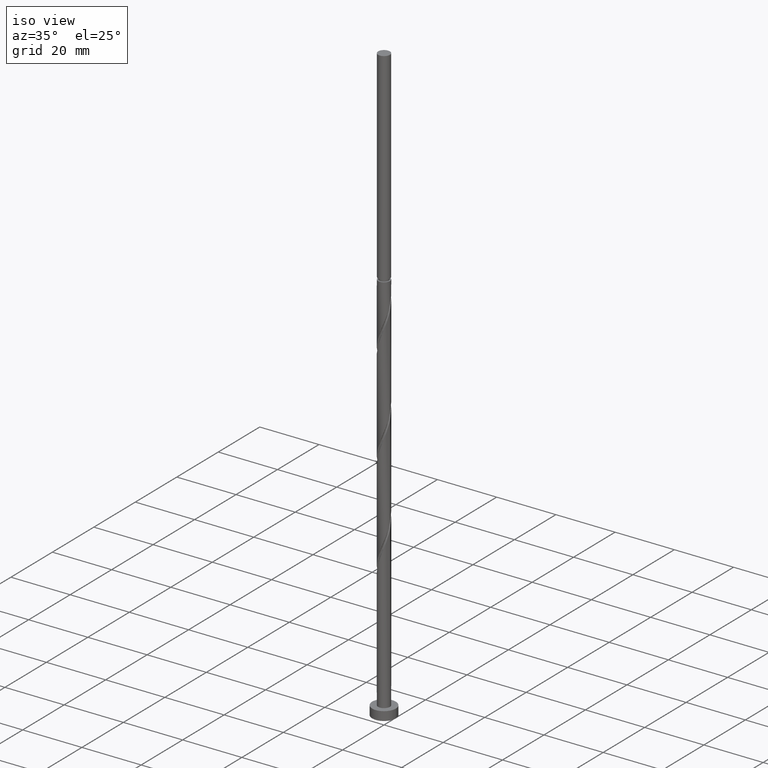
[diagram: clean part render]
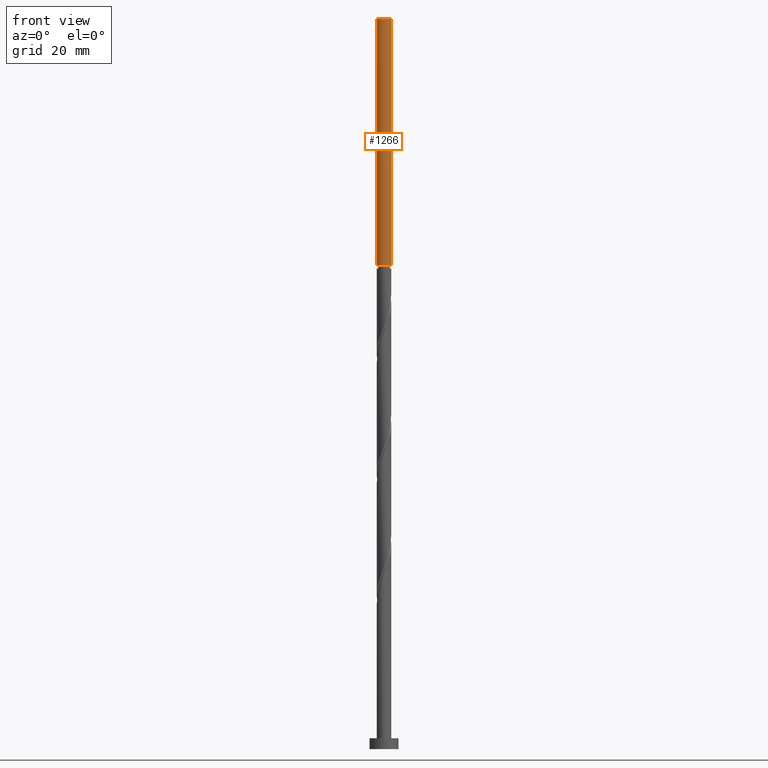
[diagram: tour spotlight — one face highlighted and labeled with its STEP entity id]
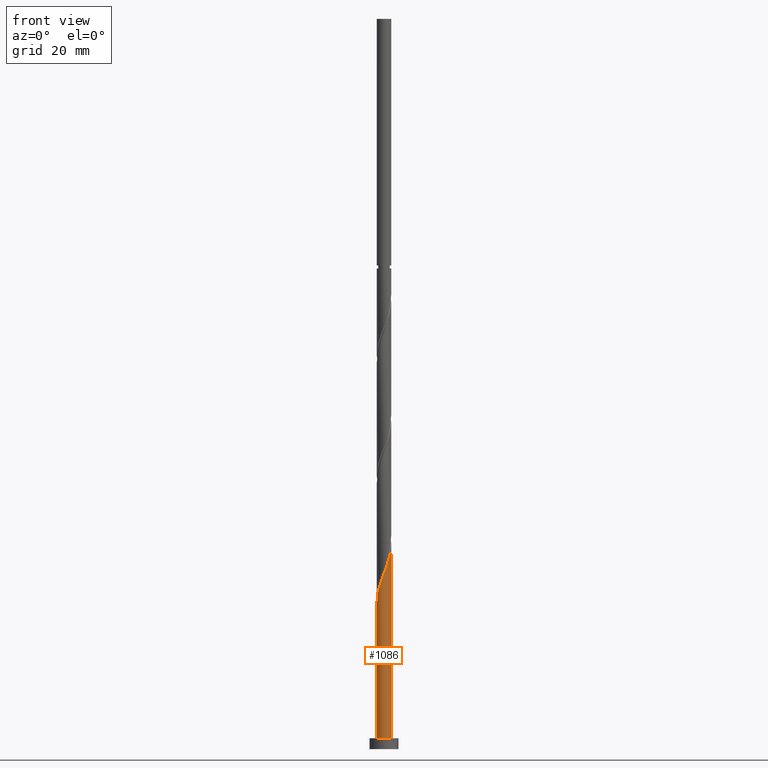
[diagram: tour spotlight — one face highlighted and labeled with its STEP entity id]
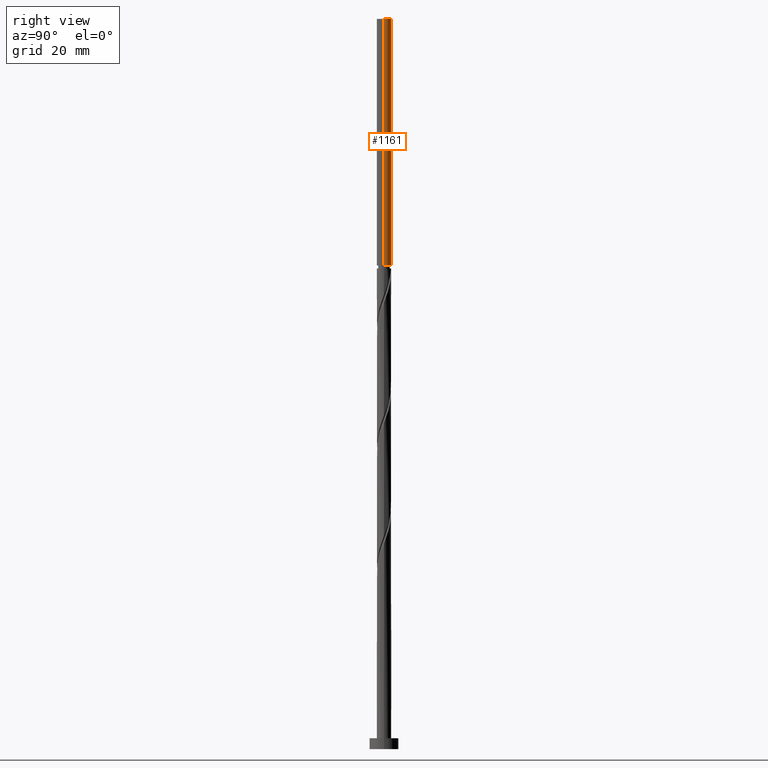
[diagram: tour spotlight — one face highlighted and labeled with its STEP entity id]
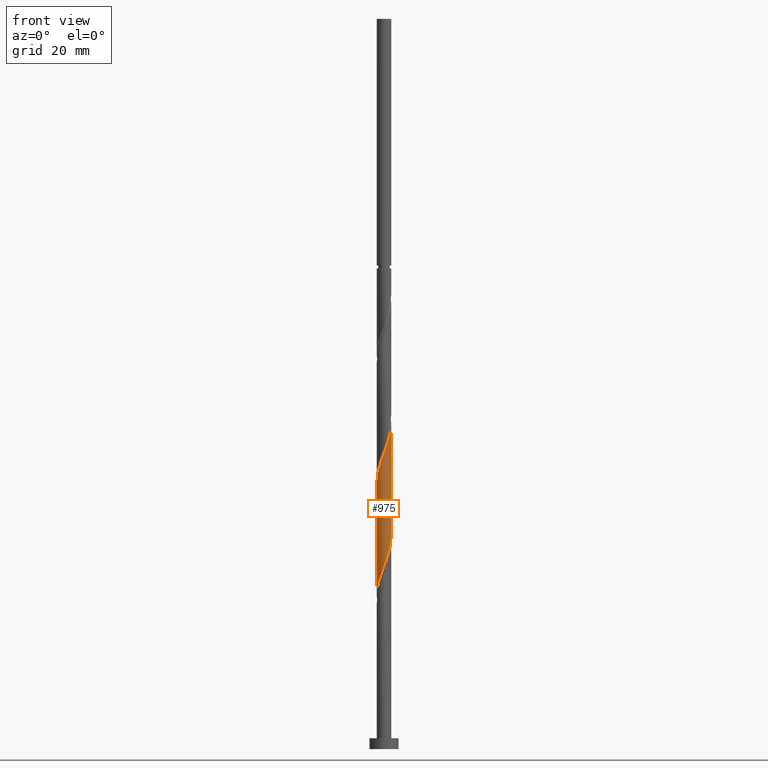
[diagram: tour spotlight — one face highlighted and labeled with its STEP entity id]
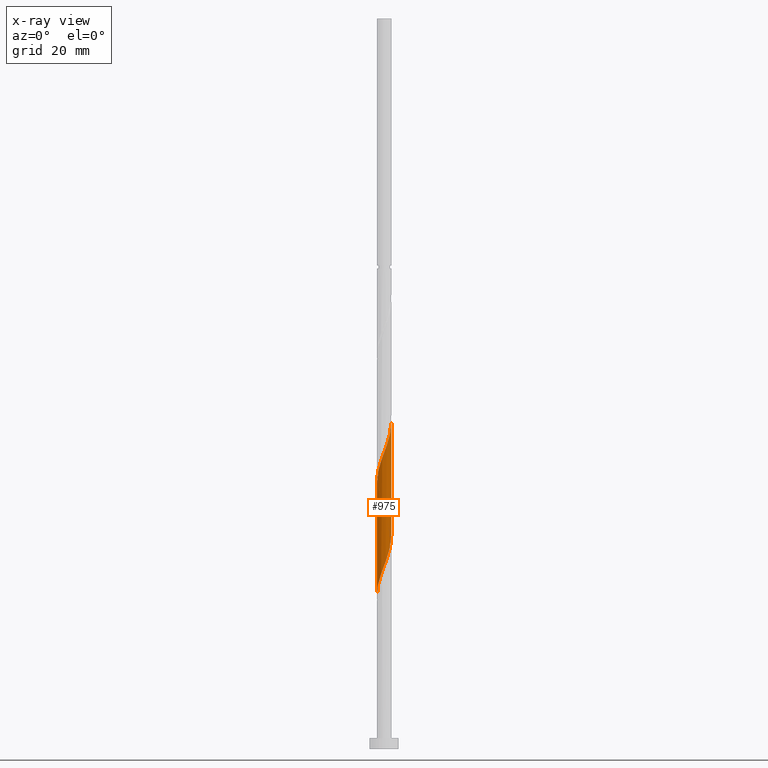
[diagram: x-ray of the same camera — body ghosted, this tour face saturated]
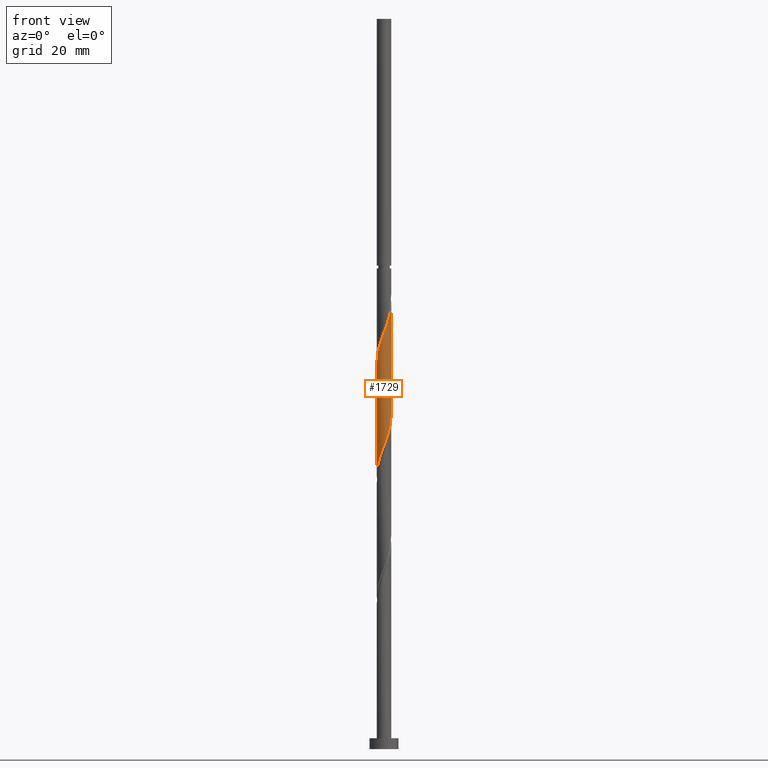
[diagram: tour spotlight — one face highlighted and labeled with its STEP entity id]
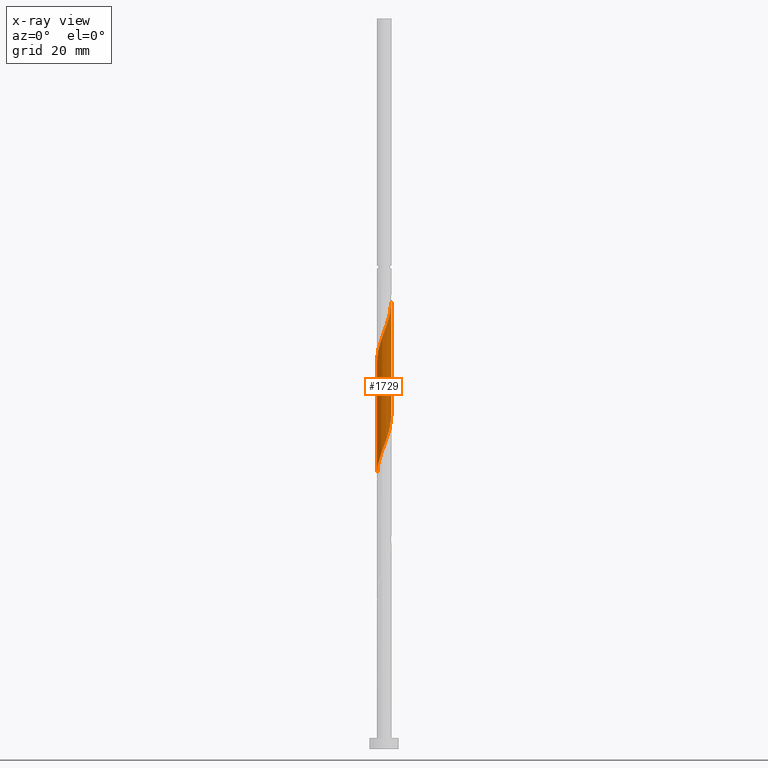
[diagram: x-ray of the same camera — body ghosted, this tour face saturated]
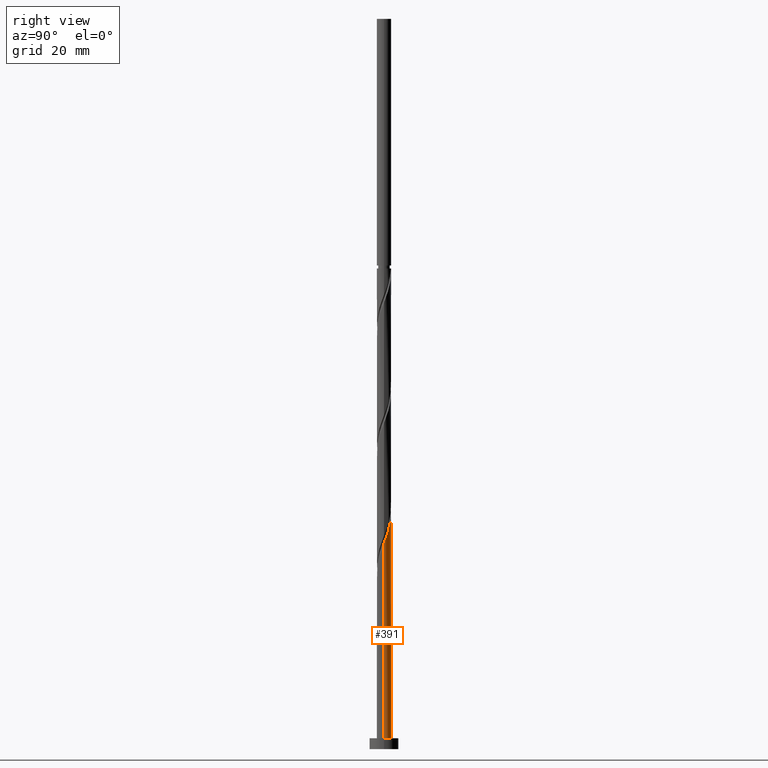
[diagram: tour spotlight — one face highlighted and labeled with its STEP entity id]
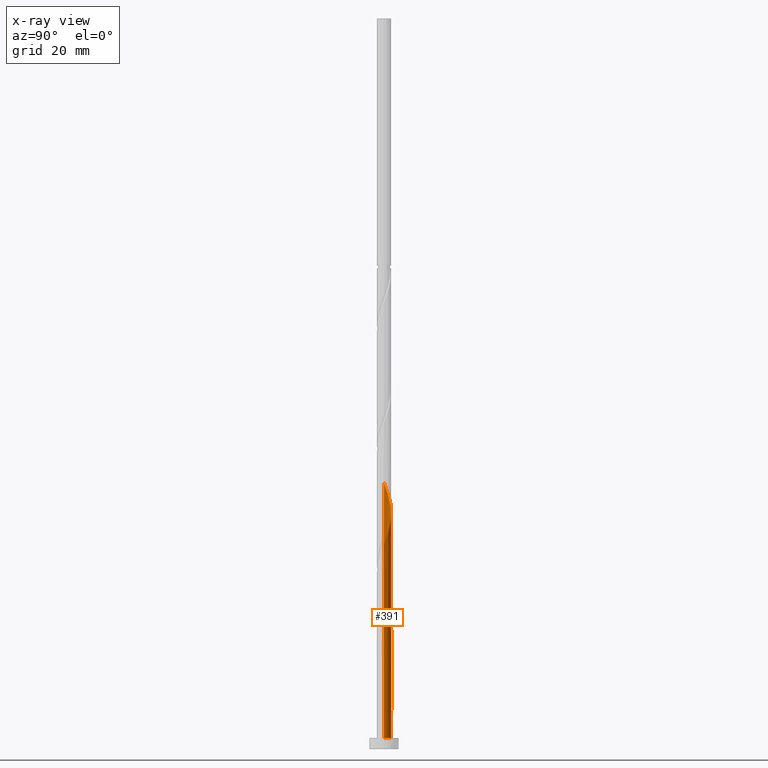
[diagram: x-ray of the same camera — body ghosted, this tour face saturated]
A machine part: a face-by-face anatomy tour. The part has 21 B-rep faces; the first image is the clean iso view, then the 6 largest visible faces are spotlighted one at a time (largest first), each with its STEP entity span.

Face 1 — front view, entity #1266. In plain terms, the highlighted cylindrical surface (edge-blend (fillet) strip) has radius 2 mm, axis along (-0, -0, -1).
Definition (entity closure, byte-faithful):
#122 = DIRECTION ( 'NONE',  ( -0.000000000000000000, -0.000000000000000000, -1.000000000000000000 ) ) ;
#161 = LINE ( 'NONE', #288, #1508 ) ;
#173 = DIRECTION ( 'NONE',  ( -0.000000000000000000, -0.000000000000000000, -1.000000000000000000 ) ) ;
#288 = CARTESIAN_POINT ( 'NONE',  ( 2.000000000000000000, 2.449293598294706414E-16, 202.0000000000000000 ) ) ;
#292 = FACE_OUTER_BOUND ( 'NONE', #731, .T. ) ;
#366 = AXIS2_PLACEMENT_3D ( 'NONE', #1675, #173, #1550 ) ;
#415 = CIRCLE ( 'NONE', #674, 1.999999999999995781 ) ;
#452 = CARTESIAN_POINT ( 'NONE',  ( -1.999999999999995781, 0.000000000000000000, 133.7628780934973065 ) ) ;
#462 = CARTESIAN_POINT ( 'NONE',  ( -2.000000000000000000, 0.000000000000000000, 202.0000000000000000 ) ) ;
#616 = VERTEX_POINT ( 'NONE', #452 ) ;
#637 = EDGE_CURVE ( 'NONE', #1071, #928, #161, .T. ) ;
#644 = DIRECTION ( 'NONE',  ( 1.000000000000000000, 0.000000000000000000, 0.000000000000000000 ) ) ;
#660 = DIRECTION ( 'NONE',  ( -1.000000000000000000, 0.000000000000000000, 0.000000000000000000 ) ) ;
#674 = AXIS2_PLACEMENT_3D ( 'NONE', #1198, #122, #660 ) ;
#709 = DIRECTION ( 'NONE',  ( -0.000000000000000000, -0.000000000000000000, -1.000000000000000000 ) ) ;
#731 = EDGE_LOOP ( 'NONE', ( #1619, #1252, #1600, #1294 ) ) ;
#828 = AXIS2_PLACEMENT_3D ( 'NONE', #1300, #1163, #644 ) ;
#894 = LINE ( 'NONE', #462, #995 ) ;
#925 = EDGE_CURVE ( 'NONE', #1696, #616, #894, .T. ) ;
#928 = VERTEX_POINT ( 'NONE', #1422 ) ;
#946 = CARTESIAN_POINT ( 'NONE',  ( -2.000000000000000000, 0.000000000000000000, 202.0000000000000000 ) ) ;
#995 = VECTOR ( 'NONE', #1046, 1000.000000000000000 ) ;
#1046 = DIRECTION ( 'NONE',  ( -0.000000000000000000, -0.000000000000000000, -1.000000000000000000 ) ) ;
#1071 = VERTEX_POINT ( 'NONE', #1108 ) ;
#1108 = CARTESIAN_POINT ( 'NONE',  ( 2.000000000000000000, 2.449293598294706414E-16, 202.0000000000000000 ) ) ;
#1120 = CYLINDRICAL_SURFACE ( 'NONE', #366, 2.000000000000000000 ) ;
#1163 = DIRECTION ( 'NONE',  ( 0.000000000000000000, 0.000000000000000000, 1.000000000000000000 ) ) ;
#1198 = CARTESIAN_POINT ( 'NONE',  ( 0.000000000000000000, 0.000000000000000000, 133.7628780934973065 ) ) ;
#1252 = ORIENTED_EDGE ( 'NONE', *, *, #1455, .F. ) ;
#1266 = ADVANCED_FACE ( 'NONE', ( #292 ), #1120, .T. ) ;
#1294 = ORIENTED_EDGE ( 'NONE', *, *, #1616, .F. ) ;
#1300 = CARTESIAN_POINT ( 'NONE',  ( 0.000000000000000000, 0.000000000000000000, 202.0000000000000000 ) ) ;
#1360 = CIRCLE ( 'NONE', #828, 2.000000000000000000 ) ;
#1422 = CARTESIAN_POINT ( 'NONE',  ( 1.999999999999995781, 2.449293598294703456E-16, 133.7628780934973065 ) ) ;
#1455 = EDGE_CURVE ( 'NONE', #1696, #1071, #1360, .T. ) ;
#1508 = VECTOR ( 'NONE', #709, 1000.000000000000000 ) ;
#1550 = DIRECTION ( 'NONE',  ( -1.000000000000000000, 0.000000000000000000, 0.000000000000000000 ) ) ;
#1600 = ORIENTED_EDGE ( 'NONE', *, *, #925, .T. ) ;
#1616 = EDGE_CURVE ( 'NONE', #928, #616, #415, .T. ) ;
#1619 = ORIENTED_EDGE ( 'NONE', *, *, #637, .F. ) ;
#1675 = CARTESIAN_POINT ( 'NONE',  ( 0.000000000000000000, 0.000000000000000000, 202.0000000000000000 ) ) ;
#1696 = VERTEX_POINT ( 'NONE', #946 ) ;

Face 2 — front view, entity #1086. In plain terms, the highlighted cylindrical surface (edge-blend (fillet) strip) has radius 2 mm, axis along (-0, -0, -1).
Definition (entity closure, byte-faithful):
#35 = EDGE_LOOP ( 'NONE', ( #1234, #194, #503, #861 ) ) ;
#45 = CARTESIAN_POINT ( 'NONE',  ( 1.996223298870952734, -0.1228517034671607056, 56.57398920460841651 ) ) ;
#54 = LINE ( 'NONE', #579, #1141 ) ;
#141 = CARTESIAN_POINT ( 'NONE',  ( 2.000000000000003553, -8.224581443991045284E-17, 56.89931143828724203 ) ) ;
#154 = CARTESIAN_POINT ( 'NONE',  ( -1.907602967534735905, -0.6560338701139446504, 41.99065587127506660 ) ) ;
#170 = DIRECTION ( 'NONE',  ( 0.000000000000000000, 0.000000000000000000, 1.000000000000000000 ) ) ;
#183 = CARTESIAN_POINT ( 'NONE',  ( -1.498412303996178530, -1.324673758792283662, 44.07398920460840941 ) ) ;
#194 = ORIENTED_EDGE ( 'NONE', *, *, #1236, .F. ) ;
#248 = CARTESIAN_POINT ( 'NONE',  ( -2.000000000000003553, -1.218733432155036804E-15, 40.23264477162057773 ) ) ;
#300 = CARTESIAN_POINT ( 'NONE',  ( 0.1399560795713516714, -2.012397032465270907, 48.93510031571951657 ) ) ;
#306 = VECTOR ( 'NONE', #1345, 1000.000000000000000 ) ;
#311 = CARTESIAN_POINT ( 'NONE',  ( 1.812764992401018294, -0.8849929959097685428, 54.49065587127508792 ) ) ;
#322 = DIRECTION ( 'NONE',  ( -0.000000000000000000, -0.000000000000000000, -1.000000000000000000 ) ) ;
#340 = VERTEX_POINT ( 'NONE', #248 ) ;
#367 = VERTEX_POINT ( 'NONE', #380 ) ;
#380 = CARTESIAN_POINT ( 'NONE',  ( 2.000000000000000000, 2.449293598294706414E-16, 3.000000000000000000 ) ) ;
#442 = DIRECTION ( 'NONE',  ( 1.000000000000000000, 0.000000000000000000, 0.000000000000000000 ) ) ;
#445 = CARTESIAN_POINT ( 'NONE',  ( -1.104504345536229115, -1.667354236715041571, 45.46287809349728803 ) ) ;
#503 = ORIENTED_EDGE ( 'NONE', *, *, #1184, .T. ) ;
#510 = AXIS2_PLACEMENT_3D ( 'NONE', #1399, #170, #442 ) ;
#520 = VERTEX_POINT ( 'NONE', #141 ) ;
#540 = CYLINDRICAL_SURFACE ( 'NONE', #967, 2.000000000000000000 ) ;
#579 = CARTESIAN_POINT ( 'NONE',  ( -2.000000000000000000, 0.000000000000000000, 202.0000000000000000 ) ) ;
#599 = CARTESIAN_POINT ( 'NONE',  ( 1.324673758792283440, -1.498412303996178974, 52.40732253794174511 ) ) ;
#600 = EDGE_CURVE ( 'NONE', #984, #367, #1481, .T. ) ;
#609 = CARTESIAN_POINT ( 'NONE',  ( -0.8849929959097684318, -1.812764992401018738, 46.15732253794173801 ) ) ;
#699 = CARTESIAN_POINT ( 'NONE',  ( -1.790205940182201250, -0.8917189533347237296, 42.68510031571951657 ) ) ;
#728 = CARTESIAN_POINT ( 'NONE',  ( 1.980049565276635226, -0.3856594865056718335, 55.87954476016396654 ) ) ;
#740 = CARTESIAN_POINT ( 'NONE',  ( 2.000000000000003553, -8.224581443991045284E-17, 56.89931143828724203 ) ) ;
#763 = CARTESIAN_POINT ( 'NONE',  ( -2.000000000000000000, 0.000000000000000000, 3.000000000000000000 ) ) ;
#851 = CARTESIAN_POINT ( 'NONE',  ( -0.3856594865056710564, -1.980049565276635226, 47.54621142683062374 ) ) ;
#861 = ORIENTED_EDGE ( 'NONE', *, *, #600, .T. ) ;
#869 = CARTESIAN_POINT ( 'NONE',  ( -0.6353262412077201882, -1.896407278838826205, 46.85176698238619508 ) ) ;
#878 = CARTESIAN_POINT ( 'NONE',  ( -2.000000000000003553, -1.218733432155036804E-15, 40.23264477162057773 ) ) ;
#967 = AXIS2_PLACEMENT_3D ( 'NONE', #1620, #1229, #1319 ) ;
#976 = CARTESIAN_POINT ( 'NONE',  ( 0.8917189533347231745, -1.790205940182201250, 51.01843364905285938 ) ) ;
#984 = VERTEX_POINT ( 'NONE', #763 ) ;
#994 = CARTESIAN_POINT ( 'NONE',  ( -0.1228517034671595398, -1.996223298870952734, 48.24065587127508081 ) ) ;
#1004 = CARTESIAN_POINT ( 'NONE',  ( -1.960000000000003517, -0.3979949748426486189, 41.29621142683062374 ) ) ;
#1086 = ADVANCED_FACE ( 'NONE', ( #1466 ), #540, .T. ) ;
#1131 = CARTESIAN_POINT ( 'NONE',  ( -2.000000000000003109, -0.2010075630518444179, 40.76607114080983507 ) ) ;
#1141 = VECTOR ( 'NONE', #322, 1000.000000000000000 ) ;
#1184 = EDGE_CURVE ( 'NONE', #340, #984, #54, .T. ) ;
#1229 = DIRECTION ( 'NONE',  ( -0.000000000000000000, -0.000000000000000000, -1.000000000000000000 ) ) ;
#1234 = ORIENTED_EDGE ( 'NONE', *, *, #1576, .F. ) ;
#1236 = EDGE_CURVE ( 'NONE', #340, #520, #1242, .T. ) ;
#1242 =( BOUNDED_CURVE ( )  B_SPLINE_CURVE ( 2, ( #878, #1131, #1004, #154, #699, #1536, #183, #1655, #445, #609, #869, #851, #994, #300, #1268, #1251, #976, #1381, #599, #1390, #1545, #311, #1401, #728, #45, #1416, #740 ),
 .UNSPECIFIED., .F., .T. ) 
 B_SPLINE_CURVE_WITH_KNOTS ( ( 3, 2, 2, 2, 2, 2, 2, 2, 2, 2, 2, 2, 2, 3 ),
 ( 0.05453176698144639178, 0.06250000000000000000, 0.07291666666666662966, 0.08333333333333337034, 0.09375000000000000000, 0.1041666666666666297, 0.1145833333333333703, 0.1250000000000000000, 0.1354166666666666297, 0.1458333333333333703, 0.1562500000000000000, 0.1666666666666666297, 0.1770833333333333703, 0.1795317669814464612 ),
 .UNSPECIFIED. ) 
 CURVE ( )  GEOMETRIC_REPRESENTATION_ITEM ( )  RATIONAL_B_SPLINE_CURVE ( ( 0.9062941362546446111, 0.9031415850403490264, 0.9090909090909243817, 0.9013135103398428605, 0.9090909090909243817, 0.9013135103398428605, 0.9090909090909243817, 0.9013135103398428605, 0.9090909090909243817, 0.9013135103398428605, 0.9090909090909243817, 0.9013135103398428605, 0.9090909090909243817, 0.9013135103398428605, 0.9090909090909243817, 0.9013135103398428605, 0.9090909090909243817, 0.9013135103398428605, 0.9090909090909243817, 0.9013135103398428605, 0.9090909090909243817, 0.9013135103398428605, 0.9090909090909243817, 0.9013135103398428605, 0.9090909090909243817, 0.9072628343904179937, 0.9062941362546445001 ) ) 
 REPRESENTATION_ITEM ( '' )  );
#1251 = CARTESIAN_POINT ( 'NONE',  ( 0.6560338701139444284, -1.907602967534735905, 50.32398920460841651 ) ) ;
#1268 = CARTESIAN_POINT ( 'NONE',  ( 0.3979949748426484524, -1.960000000000003517, 49.62954476016395944 ) ) ;
#1319 = DIRECTION ( 'NONE',  ( -1.000000000000000000, 0.000000000000000000, 0.000000000000000000 ) ) ;
#1345 = DIRECTION ( 'NONE',  ( -0.000000000000000000, -0.000000000000000000, -1.000000000000000000 ) ) ;
#1358 = CARTESIAN_POINT ( 'NONE',  ( 2.000000000000000000, 2.449293598294706414E-16, 202.0000000000000000 ) ) ;
#1381 = CARTESIAN_POINT ( 'NONE',  ( 1.127404036555502032, -1.672808912829666816, 51.71287809349728803 ) ) ;
#1390 = CARTESIAN_POINT ( 'NONE',  ( 1.521943481029064626, -1.324015695162691575, 53.10176698238618798 ) ) ;
#1399 = CARTESIAN_POINT ( 'NONE',  ( 0.000000000000000000, 0.000000000000000000, 3.000000000000000000 ) ) ;
#1401 = CARTESIAN_POINT ( 'NONE',  ( 1.896407278838826205, -0.6353262412077201882, 55.18510031571952368 ) ) ;
#1416 = CARTESIAN_POINT ( 'NONE',  ( 2.000000000000003553, -0.06148390331534503428, 56.73614775025910717 ) ) ;
#1466 = FACE_OUTER_BOUND ( 'NONE', #35, .T. ) ;
#1481 = CIRCLE ( 'NONE', #510, 2.000000000000000000 ) ;
#1507 = LINE ( 'NONE', #1358, #306 ) ;
#1536 = CARTESIAN_POINT ( 'NONE',  ( -1.672808912829666372, -1.127404036555502476, 43.37954476016397365 ) ) ;
#1545 = CARTESIAN_POINT ( 'NONE',  ( 1.667354236715041127, -1.104504345536230225, 53.79621142683064505 ) ) ;
#1576 = EDGE_CURVE ( 'NONE', #520, #367, #1507, .T. ) ;
#1620 = CARTESIAN_POINT ( 'NONE',  ( 0.000000000000000000, 0.000000000000000000, 202.0000000000000000 ) ) ;
#1655 = CARTESIAN_POINT ( 'NONE',  ( -1.324015695162691575, -1.521943481029064626, 44.76843364905285227 ) ) ;

Face 3 — right view, entity #1161. In plain terms, the highlighted cylindrical surface (edge-blend (fillet) strip) has radius 2 mm, axis along (-0, -0, -1).
Definition (entity closure, byte-faithful):
#15 = CARTESIAN_POINT ( 'NONE',  ( 0.000000000000000000, 0.000000000000000000, 202.0000000000000000 ) ) ;
#33 = CYLINDRICAL_SURFACE ( 'NONE', #1420, 2.000000000000000000 ) ;
#62 = FACE_OUTER_BOUND ( 'NONE', #802, .T. ) ;
#121 = ORIENTED_EDGE ( 'NONE', *, *, #637, .T. ) ;
#159 = AXIS2_PLACEMENT_3D ( 'NONE', #923, #1490, #1719 ) ;
#161 = LINE ( 'NONE', #288, #1508 ) ;
#288 = CARTESIAN_POINT ( 'NONE',  ( 2.000000000000000000, 2.449293598294706414E-16, 202.0000000000000000 ) ) ;
#452 = CARTESIAN_POINT ( 'NONE',  ( -1.999999999999995781, 0.000000000000000000, 133.7628780934973065 ) ) ;
#462 = CARTESIAN_POINT ( 'NONE',  ( -2.000000000000000000, 0.000000000000000000, 202.0000000000000000 ) ) ;
#590 = DIRECTION ( 'NONE',  ( -1.000000000000000000, 0.000000000000000000, 0.000000000000000000 ) ) ;
#616 = VERTEX_POINT ( 'NONE', #452 ) ;
#637 = EDGE_CURVE ( 'NONE', #1071, #928, #161, .T. ) ;
#709 = DIRECTION ( 'NONE',  ( -0.000000000000000000, -0.000000000000000000, -1.000000000000000000 ) ) ;
#733 = CIRCLE ( 'NONE', #1751, 2.000000000000000000 ) ;
#754 = DIRECTION ( 'NONE',  ( 1.000000000000000000, 0.000000000000000000, 0.000000000000000000 ) ) ;
#765 = EDGE_CURVE ( 'NONE', #616, #928, #1224, .T. ) ;
#802 = EDGE_LOOP ( 'NONE', ( #1419, #121, #1567, #1022 ) ) ;
#860 = CARTESIAN_POINT ( 'NONE',  ( 0.000000000000000000, 0.000000000000000000, 202.0000000000000000 ) ) ;
#894 = LINE ( 'NONE', #462, #995 ) ;
#901 = EDGE_CURVE ( 'NONE', #1071, #1696, #733, .T. ) ;
#923 = CARTESIAN_POINT ( 'NONE',  ( 0.000000000000000000, 0.000000000000000000, 133.7628780934973065 ) ) ;
#925 = EDGE_CURVE ( 'NONE', #1696, #616, #894, .T. ) ;
#928 = VERTEX_POINT ( 'NONE', #1422 ) ;
#946 = CARTESIAN_POINT ( 'NONE',  ( -2.000000000000000000, 0.000000000000000000, 202.0000000000000000 ) ) ;
#985 = DIRECTION ( 'NONE',  ( -0.000000000000000000, -0.000000000000000000, -1.000000000000000000 ) ) ;
#995 = VECTOR ( 'NONE', #1046, 1000.000000000000000 ) ;
#1022 = ORIENTED_EDGE ( 'NONE', *, *, #925, .F. ) ;
#1046 = DIRECTION ( 'NONE',  ( -0.000000000000000000, -0.000000000000000000, -1.000000000000000000 ) ) ;
#1071 = VERTEX_POINT ( 'NONE', #1108 ) ;
#1108 = CARTESIAN_POINT ( 'NONE',  ( 2.000000000000000000, 2.449293598294706414E-16, 202.0000000000000000 ) ) ;
#1161 = ADVANCED_FACE ( 'NONE', ( #62 ), #33, .T. ) ;
#1224 = CIRCLE ( 'NONE', #159, 1.999999999999995781 ) ;
#1367 = DIRECTION ( 'NONE',  ( 0.000000000000000000, 0.000000000000000000, 1.000000000000000000 ) ) ;
#1419 = ORIENTED_EDGE ( 'NONE', *, *, #901, .F. ) ;
#1420 = AXIS2_PLACEMENT_3D ( 'NONE', #860, #985, #590 ) ;
#1422 = CARTESIAN_POINT ( 'NONE',  ( 1.999999999999995781, 2.449293598294703456E-16, 133.7628780934973065 ) ) ;
#1490 = DIRECTION ( 'NONE',  ( -0.000000000000000000, -0.000000000000000000, -1.000000000000000000 ) ) ;
#1508 = VECTOR ( 'NONE', #709, 1000.000000000000000 ) ;
#1567 = ORIENTED_EDGE ( 'NONE', *, *, #765, .F. ) ;
#1696 = VERTEX_POINT ( 'NONE', #946 ) ;
#1719 = DIRECTION ( 'NONE',  ( -1.000000000000000000, 0.000000000000000000, 0.000000000000000000 ) ) ;
#1751 = AXIS2_PLACEMENT_3D ( 'NONE', #15, #1367, #754 ) ;

Face 4 — front view, entity #975. An x-ray twin of the same camera follows (body ghosted, this face saturated) — the face is partly hidden behind the body. In plain terms, the highlighted cylindrical surface (edge-blend (fillet) strip) has radius 2 mm, axis along (-0, -0, -1).
Definition (entity closure, byte-faithful):
#13 = CARTESIAN_POINT ( 'NONE',  ( 0.6353262412077169685, -1.896407278838824650, 52.40732253794173801 ) ) ;
#24 = EDGE_CURVE ( 'NONE', #258, #1703, #182, .T. ) ;
#82 = CARTESIAN_POINT ( 'NONE',  ( 2.000000000000003553, -8.224581443991045284E-17, 90.23264477162057062 ) ) ;
#92 = CARTESIAN_POINT ( 'NONE',  ( -2.000000000000003553, -1.218733432155036804E-15, 73.56597810495391343 ) ) ;
#99 = CARTESIAN_POINT ( 'NONE',  ( -1.980049565276631451, -0.3856594865056690580, 43.37954476016398075 ) ) ;
#101 = CARTESIAN_POINT ( 'NONE',  ( -0.6353262412077201882, -1.896407278838826205, 80.18510031571953789 ) ) ;
#109 = CARTESIAN_POINT ( 'NONE',  ( -1.521943481029062850, -1.324015695162687800, 46.15732253794175222 ) ) ;
#145 = CARTESIAN_POINT ( 'NONE',  ( -1.324673758792282108, -1.498412303996174977, 46.85176698238619508 ) ) ;
#182 = LINE ( 'NONE', #1654, #1449 ) ;
#196 = CARTESIAN_POINT ( 'NONE',  ( 1.896407278838826205, -0.6353262412077201882, 88.51843364905283806 ) ) ;
#208 = CARTESIAN_POINT ( 'NONE',  ( 1.324673758792283440, -1.498412303996178974, 85.74065587127508081 ) ) ;
#217 = CARTESIAN_POINT ( 'NONE',  ( 0.6560338701139444284, -1.907602967534735905, 83.65732253794175222 ) ) ;
#238 = CARTESIAN_POINT ( 'NONE',  ( 1.959999999999999964, -0.3979949748426487854, 57.96287809349730225 ) ) ;
#258 = VERTEX_POINT ( 'NONE', #635 ) ;
#287 = CARTESIAN_POINT ( 'NONE',  ( -1.896407278838823984, -0.6353262412077173016, 44.07398920460840230 ) ) ;
#321 = DIRECTION ( 'NONE',  ( -0.000000000000000000, -0.000000000000000000, -1.000000000000000000 ) ) ;
#332 = FACE_OUTER_BOUND ( 'NONE', #881, .T. ) ;
#341 = CYLINDRICAL_SURFACE ( 'NONE', #413, 2.000000000000000000 ) ;
#342 = CARTESIAN_POINT ( 'NONE',  ( 0.1399560795713516714, -2.012397032465270907, 82.26843364905285227 ) ) ;
#378 = CARTESIAN_POINT ( 'NONE',  ( -0.8917189533347231745, -1.790205940182197253, 48.24065587127507371 ) ) ;
#411 = CARTESIAN_POINT ( 'NONE',  ( -0.3979949748426486744, -1.959999999999999964, 49.62954476016395944 ) ) ;
#413 = AXIS2_PLACEMENT_3D ( 'NONE', #1297, #734, #617 ) ;
#422 = CARTESIAN_POINT ( 'NONE',  ( -2.000000000000000444, 7.768491018460690938E-15, 42.35977808204067685 ) ) ;
#453 = CARTESIAN_POINT ( 'NONE',  ( -2.000000000000000000, 0.000000000000000000, 202.0000000000000000 ) ) ;
#465 = CARTESIAN_POINT ( 'NONE',  ( -1.672808912829666372, -1.127404036555502476, 76.71287809349730935 ) ) ;
#475 = CARTESIAN_POINT ( 'NONE',  ( -1.498412303996178530, -1.324673758792283662, 77.40732253794176643 ) ) ;
#485 = CARTESIAN_POINT ( 'NONE',  ( -1.324015695162691575, -1.521943481029064626, 78.10176698238622350 ) ) ;
#513 = ORIENTED_EDGE ( 'NONE', *, *, #24, .F. ) ;
#516 = CARTESIAN_POINT ( 'NONE',  ( 1.907602967534731464, -0.6560338701139458717, 57.26843364905284517 ) ) ;
#549 = CARTESIAN_POINT ( 'NONE',  ( 0.1228517034671577218, -1.996223298870949847, 51.01843364905285227 ) ) ;
#567 = LINE ( 'NONE', #453, #1168 ) ;
#617 = DIRECTION ( 'NONE',  ( -1.000000000000000000, 0.000000000000000000, 0.000000000000000000 ) ) ;
#619 = CARTESIAN_POINT ( 'NONE',  ( -2.000000000000003553, -1.218733432155036607E-15, 73.56597810495391343 ) ) ;
#635 = CARTESIAN_POINT ( 'NONE',  ( 2.000000000000003553, -8.224581443991045284E-17, 90.23264477162057062 ) ) ;
#683 = CARTESIAN_POINT ( 'NONE',  ( 2.000000000000000000, -2.669250523186205292E-15, 59.02644474870736957 ) ) ;
#691 = CARTESIAN_POINT ( 'NONE',  ( -2.000000000000000444, -0.06148390331534263342, 42.52294177006884013 ) ) ;
#704 = EDGE_CURVE ( 'NONE', #1043, #258, #867, .T. ) ;
#722 = VERTEX_POINT ( 'NONE', #779 ) ;
#734 = DIRECTION ( 'NONE',  ( -0.000000000000000000, -0.000000000000000000, -1.000000000000000000 ) ) ;
#755 = CARTESIAN_POINT ( 'NONE',  ( 2.000000000000003553, -0.06148390331534780984, 90.06948108359243577 ) ) ;
#766 = CARTESIAN_POINT ( 'NONE',  ( 1.521943481029064626, -1.324015695162691575, 86.43510031571952368 ) ) ;
#779 = CARTESIAN_POINT ( 'NONE',  ( -2.000000000000000444, 7.768491018460690938E-15, 42.35977808204067685 ) ) ;
#835 = CARTESIAN_POINT ( 'NONE',  ( -1.667354236715039129, -1.104504345536227339, 45.46287809349728803 ) ) ;
#867 =( BOUNDED_CURVE ( )  B_SPLINE_CURVE ( 2, ( #619, #1691, #1179, #1162, #1698, #465, #475, #485, #915, #1047, #101, #1027, #1552, #342, #897, #217, #1038, #873, #208, #766, #1579, #1708, #196, #1015, #1310, #755, #82 ),
 .UNSPECIFIED., .F., .T. ) 
 B_SPLINE_CURVE_WITH_KNOTS ( ( 3, 2, 2, 2, 2, 2, 2, 2, 2, 2, 2, 2, 2, 3 ),
 ( 0.3045317669814462946, 0.3125000000000000000, 0.3229166666666666297, 0.3333333333333333703, 0.3437500000000000000, 0.3541666666666666297, 0.3645833333333333703, 0.3750000000000000000, 0.3854166666666666297, 0.3958333333333333703, 0.4062500000000000000, 0.4166666666666666297, 0.4270833333333333703, 0.4295317669814463502 ),
 .UNSPECIFIED. ) 
 CURVE ( )  GEOMETRIC_REPRESENTATION_ITEM ( )  RATIONAL_B_SPLINE_CURVE ( ( 0.9062941362546447222, 0.9031415850403490264, 0.9090909090909243817, 0.9013135103398428605, 0.9090909090909243817, 0.9013135103398428605, 0.9090909090909243817, 0.9013135103398428605, 0.9090909090909243817, 0.9013135103398428605, 0.9090909090909243817, 0.9013135103398428605, 0.9090909090909243817, 0.9013135103398428605, 0.9090909090909243817, 0.9013135103398428605, 0.9090909090909243817, 0.9013135103398428605, 0.9090909090909243817, 0.9013135103398428605, 0.9090909090909243817, 0.9013135103398428605, 0.9090909090909243817, 0.9013135103398428605, 0.9090909090909243817, 0.9072628343904181047, 0.9062941362546446111 ) ) 
 REPRESENTATION_ITEM ( '' )  );
#873 = CARTESIAN_POINT ( 'NONE',  ( 1.127404036555502032, -1.672808912829666816, 85.04621142683063795 ) ) ;
#881 = EDGE_LOOP ( 'NONE', ( #513, #1715, #1593, #1063 ) ) ;
#897 = CARTESIAN_POINT ( 'NONE',  ( 0.3979949748426484524, -1.960000000000003517, 82.96287809349729514 ) ) ;
#915 = CARTESIAN_POINT ( 'NONE',  ( -1.104504345536229115, -1.667354236715041571, 78.79621142683065216 ) ) ;
#930 = CARTESIAN_POINT ( 'NONE',  ( 0.8849929959097654342, -1.812764992401015851, 53.10176698238618798 ) ) ;
#957 = CARTESIAN_POINT ( 'NONE',  ( 1.498412303996174977, -1.324673758792282774, 55.18510031571952368 ) ) ;
#966 = CARTESIAN_POINT ( 'NONE',  ( -0.6560338701139448725, -1.907602967534732130, 48.93510031571951657 ) ) ;
#975 = ADVANCED_FACE ( 'NONE', ( #332 ), #341, .T. ) ;
#1015 = CARTESIAN_POINT ( 'NONE',  ( 1.980049565276635226, -0.3856594865056718335, 89.21287809349729514 ) ) ;
#1027 = CARTESIAN_POINT ( 'NONE',  ( -0.3856594865056710564, -1.980049565276635226, 80.87954476016398075 ) ) ;
#1038 = CARTESIAN_POINT ( 'NONE',  ( 0.8917189533347231745, -1.790205940182201250, 84.35176698238618087 ) ) ;
#1043 = VERTEX_POINT ( 'NONE', #92 ) ;
#1047 = CARTESIAN_POINT ( 'NONE',  ( -0.8849929959097684318, -1.812764992401018738, 79.49065587127509502 ) ) ;
#1063 = ORIENTED_EDGE ( 'NONE', *, *, #1117, .F. ) ;
#1067 = CARTESIAN_POINT ( 'NONE',  ( 1.672808912829662153, -1.127404036555502476, 55.87954476016395944 ) ) ;
#1100 = CARTESIAN_POINT ( 'NONE',  ( -0.1399560795713531147, -2.012397032465267799, 50.32398920460840941 ) ) ;
#1117 = EDGE_CURVE ( 'NONE', #1703, #722, #1231, .T. ) ;
#1162 = CARTESIAN_POINT ( 'NONE',  ( -1.907602967534735905, -0.6560338701139446504, 75.32398920460840941 ) ) ;
#1168 = VECTOR ( 'NONE', #1686, 1000.000000000000000 ) ;
#1179 = CARTESIAN_POINT ( 'NONE',  ( -1.960000000000003517, -0.3979949748426486189, 74.62954476016398075 ) ) ;
#1214 = EDGE_CURVE ( 'NONE', #1043, #722, #567, .T. ) ;
#1231 =( BOUNDED_CURVE ( )  B_SPLINE_CURVE ( 2, ( #683, #1594, #238, #516, #1587, #1067, #957, #1452, #1235, #930, #13, #1717, #549, #1100, #411, #966, #378, #1630, #145, #109, #835, #1515, #287, #99, #1494, #691, #422 ),
 .UNSPECIFIED., .F., .T. ) 
 B_SPLINE_CURVE_WITH_KNOTS ( ( 3, 2, 2, 2, 2, 2, 2, 2, 2, 2, 2, 2, 2, 3 ),
 ( 0.8045317669814462391, 0.8125000000000000000, 0.8229166666666666297, 0.8333333333333333703, 0.8437500000000000000, 0.8541666666666666297, 0.8645833333333333703, 0.8750000000000000000, 0.8854166666666666297, 0.8958333333333333703, 0.9062500000000000000, 0.9166666666666666297, 0.9270833333333333703, 0.9295317669814464612 ),
 .UNSPECIFIED. ) 
 CURVE ( )  GEOMETRIC_REPRESENTATION_ITEM ( )  RATIONAL_B_SPLINE_CURVE ( ( 0.9062941362546380608, 0.9031415850403422541, 0.9090909090909177204, 0.9013135103398360881, 0.9090909090909177204, 0.9013135103398360881, 0.9090909090909177204, 0.9013135103398360881, 0.9090909090909177204, 0.9013135103398360881, 0.9090909090909177204, 0.9013135103398360881, 0.9090909090909177204, 0.9013135103398360881, 0.9090909090909177204, 0.9013135103398360881, 0.9090909090909177204, 0.9013135103398360881, 0.9090909090909177204, 0.9013135103398360881, 0.9090909090909177204, 0.9013135103398360881, 0.9090909090909177204, 0.9013135103398360881, 0.9090909090909177204, 0.9072628343904113324, 0.9062941362546378388 ) ) 
 REPRESENTATION_ITEM ( '' )  );
#1235 = CARTESIAN_POINT ( 'NONE',  ( 1.104504345536226007, -1.667354236715039573, 53.79621142683063084 ) ) ;
#1297 = CARTESIAN_POINT ( 'NONE',  ( 0.000000000000000000, 0.000000000000000000, 202.0000000000000000 ) ) ;
#1310 = CARTESIAN_POINT ( 'NONE',  ( 1.996223298870952734, -0.1228517034671607056, 89.90732253794173801 ) ) ;
#1449 = VECTOR ( 'NONE', #321, 1000.000000000000000 ) ;
#1452 = CARTESIAN_POINT ( 'NONE',  ( 1.324015695162687578, -1.521943481029062628, 54.49065587127507371 ) ) ;
#1494 = CARTESIAN_POINT ( 'NONE',  ( -1.996223298870949847, -0.1228517034671582908, 42.68510031571952368 ) ) ;
#1515 = CARTESIAN_POINT ( 'NONE',  ( -1.812764992401015851, -0.8849929959097654342, 44.76843364905285227 ) ) ;
#1552 = CARTESIAN_POINT ( 'NONE',  ( -0.1228517034671595398, -1.996223298870952734, 81.57398920460842362 ) ) ;
#1579 = CARTESIAN_POINT ( 'NONE',  ( 1.667354236715041127, -1.104504345536230225, 87.12954476016395233 ) ) ;
#1587 = CARTESIAN_POINT ( 'NONE',  ( 1.790205940182196809, -0.8917189533347242847, 56.57398920460840941 ) ) ;
#1593 = ORIENTED_EDGE ( 'NONE', *, *, #1214, .T. ) ;
#1594 = CARTESIAN_POINT ( 'NONE',  ( 2.000000000000000444, -0.2010075630518413925, 58.49301837951809091 ) ) ;
#1630 = CARTESIAN_POINT ( 'NONE',  ( -1.127404036555501365, -1.672808912829662820, 47.54621142683063795 ) ) ;
#1654 = CARTESIAN_POINT ( 'NONE',  ( 2.000000000000000000, 2.449293598294706414E-16, 202.0000000000000000 ) ) ;
#1686 = DIRECTION ( 'NONE',  ( -0.000000000000000000, -0.000000000000000000, -1.000000000000000000 ) ) ;
#1691 = CARTESIAN_POINT ( 'NONE',  ( -2.000000000000003553, -0.2010075630518419754, 74.09940447414317077 ) ) ;
#1698 = CARTESIAN_POINT ( 'NONE',  ( -1.790205940182201250, -0.8917189533347237296, 76.01843364905288070 ) ) ;
#1703 = VERTEX_POINT ( 'NONE', #1737 ) ;
#1708 = CARTESIAN_POINT ( 'NONE',  ( 1.812764992401018294, -0.8849929959097685428, 87.82398920460842362 ) ) ;
#1715 = ORIENTED_EDGE ( 'NONE', *, *, #704, .F. ) ;
#1717 = CARTESIAN_POINT ( 'NONE',  ( 0.3856594865056686139, -1.980049565276632118, 51.71287809349730225 ) ) ;
#1737 = CARTESIAN_POINT ( 'NONE',  ( 2.000000000000000000, -2.669250523186205292E-15, 59.02644474870736957 ) ) ;

Face 5 — front view, entity #1729. An x-ray twin of the same camera follows (body ghosted, this face saturated) — the face is partly hidden behind the body. In plain terms, the highlighted cylindrical surface (edge-blend (fillet) strip) has radius 2 mm, axis along (-0, -0, -1).
Definition (entity closure, byte-faithful):
#110 = CARTESIAN_POINT ( 'NONE',  ( 1.127404036555502032, -1.672808912829666816, 118.3795447601639523 ) ) ;
#129 = VECTOR ( 'NONE', #1559, 1000.000000000000000 ) ;
#138 = CARTESIAN_POINT ( 'NONE',  ( -1.812764992401015851, -0.8849929959097654342, 78.10176698238619508 ) ) ;
#157 = CARTESIAN_POINT ( 'NONE',  ( -1.667354236715039129, -1.104504345536227339, 78.79621142683063795 ) ) ;
#186 = LINE ( 'NONE', #885, #129 ) ;
#191 = CARTESIAN_POINT ( 'NONE',  ( 2.000000000000000000, -2.669250523186205292E-15, 92.35977808204070527 ) ) ;
#197 = CARTESIAN_POINT ( 'NONE',  ( 1.996223298870952734, -0.1228517034671607056, 123.2406558712750808 ) ) ;
#218 = CARTESIAN_POINT ( 'NONE',  ( -0.1228517034671595398, -1.996223298870952734, 114.9073225379417522 ) ) ;
#265 = VERTEX_POINT ( 'NONE', #191 ) ;
#274 = ORIENTED_EDGE ( 'NONE', *, *, #1417, .F. ) ;
#304 = CARTESIAN_POINT ( 'NONE',  ( -1.999999999999999556, -0.06148390331534819148, 75.85627510340219715 ) ) ;
#333 = CARTESIAN_POINT ( 'NONE',  ( 0.1399560795713516714, -2.012397032465270907, 115.6017669823862235 ) ) ;
#343 = CARTESIAN_POINT ( 'NONE',  ( -1.104504345536229115, -1.667354236715041571, 112.1295447601639808 ) ) ;
#351 = CARTESIAN_POINT ( 'NONE',  ( 0.6560338701139444284, -1.907602967534735905, 116.9906558712750808 ) ) ;
#384 = CARTESIAN_POINT ( 'NONE',  ( 1.907602967534731464, -0.6560338701139458717, 90.60176698238619508 ) ) ;
#466 = CARTESIAN_POINT ( 'NONE',  ( 2.000000000000000000, 2.449293598294706414E-16, 202.0000000000000000 ) ) ;
#486 = CARTESIAN_POINT ( 'NONE',  ( -2.000000000000003109, -0.2010075630518426693, 107.4327378074764852 ) ) ;
#497 = CARTESIAN_POINT ( 'NONE',  ( 1.812764992401018294, -0.8849929959097685428, 121.1573225379417380 ) ) ;
#536 = FACE_OUTER_BOUND ( 'NONE', #900, .T. ) ;
#551 = CARTESIAN_POINT ( 'NONE',  ( -0.1399560795713531147, -2.012397032465267799, 83.65732253794175222 ) ) ;
#582 = CARTESIAN_POINT ( 'NONE',  ( 0.1228517034671577218, -1.996223298870949847, 84.35176698238620929 ) ) ;
#631 = CARTESIAN_POINT ( 'NONE',  ( -0.3856594865056710564, -1.980049565276635226, 114.2128780934973236 ) ) ;
#650 = CARTESIAN_POINT ( 'NONE',  ( 1.498412303996174977, -1.324673758792282774, 88.51843364905283806 ) ) ;
#654 = VECTOR ( 'NONE', #1028, 1000.000000000000000 ) ;
#672 = VERTEX_POINT ( 'NONE', #1411 ) ;
#694 = CARTESIAN_POINT ( 'NONE',  ( -1.980049565276631451, -0.3856594865056690580, 76.71287809349730935 ) ) ;
#705 = CARTESIAN_POINT ( 'NONE',  ( 0.3856594865056686139, -1.980049565276632118, 85.04621142683062374 ) ) ;
#715 = CARTESIAN_POINT ( 'NONE',  ( -2.000000000000000444, 2.183252528768548748E-15, 75.69311141537404808 ) ) ;
#719 = CARTESIAN_POINT ( 'NONE',  ( 2.000000000000003553, -7.476892221810041437E-16, 123.5659781049539134 ) ) ;
#780 = CARTESIAN_POINT ( 'NONE',  ( 1.667354236715041127, -1.104504345536230225, 120.4628780934972951 ) ) ;
#788 = CARTESIAN_POINT ( 'NONE',  ( -1.672808912829666372, -1.127404036555502476, 110.0462114268306379 ) ) ;
#792 = EDGE_CURVE ( 'NONE', #265, #672, #1056, .T. ) ;
#796 = CARTESIAN_POINT ( 'NONE',  ( 0.8849929959097654342, -1.812764992401015851, 86.43510031571953789 ) ) ;
#805 = DIRECTION ( 'NONE',  ( -0.000000000000000000, -0.000000000000000000, -1.000000000000000000 ) ) ;
#830 = CYLINDRICAL_SURFACE ( 'NONE', #1665, 2.000000000000000000 ) ;
#834 = ORIENTED_EDGE ( 'NONE', *, *, #792, .F. ) ;
#837 = CARTESIAN_POINT ( 'NONE',  ( -0.8917189533347231745, -1.790205940182197253, 81.57398920460839520 ) ) ;
#841 = CARTESIAN_POINT ( 'NONE',  ( -2.000000000000003553, 2.243067666543011938E-15, 106.8993114382872420 ) ) ;
#885 = CARTESIAN_POINT ( 'NONE',  ( -2.000000000000000000, 0.000000000000000000, 202.0000000000000000 ) ) ;
#888 = CARTESIAN_POINT ( 'NONE',  ( 1.521943481029064626, -1.324015695162691575, 119.7684336490528665 ) ) ;
#898 = CARTESIAN_POINT ( 'NONE',  ( 2.000000000000003553, -7.476892221810041437E-16, 123.5659781049539134 ) ) ;
#900 = EDGE_LOOP ( 'NONE', ( #274, #1036, #965, #834 ) ) ;
#904 = CARTESIAN_POINT ( 'NONE',  ( 0.8917189533347231745, -1.790205940182201250, 117.6851003157195521 ) ) ;
#924 = CARTESIAN_POINT ( 'NONE',  ( -1.790205940182201250, -0.8917189533347237296, 109.3517669823862235 ) ) ;
#933 = CARTESIAN_POINT ( 'NONE',  ( 1.324015695162687578, -1.521943481029062628, 87.82398920460842362 ) ) ;
#934 = DIRECTION ( 'NONE',  ( -1.000000000000000000, 0.000000000000000000, 0.000000000000000000 ) ) ;
#951 = EDGE_CURVE ( 'NONE', #1176, #672, #186, .T. ) ;
#965 = ORIENTED_EDGE ( 'NONE', *, *, #951, .T. ) ;
#998 = CARTESIAN_POINT ( 'NONE',  ( -1.896407278838823984, -0.6353262412077173016, 77.40732253794175222 ) ) ;
#1028 = DIRECTION ( 'NONE',  ( -0.000000000000000000, -0.000000000000000000, -1.000000000000000000 ) ) ;
#1036 = ORIENTED_EDGE ( 'NONE', *, *, #1498, .F. ) ;
#1039 = CARTESIAN_POINT ( 'NONE',  ( -1.907602967534735905, -0.6560338701139446504, 108.6573225379417664 ) ) ;
#1056 =( BOUNDED_CURVE ( )  B_SPLINE_CURVE ( 2, ( #1074, #1595, #1602, #384, #1467, #1329, #650, #933, #1474, #796, #1113, #705, #582, #551, #1539, #1529, #837, #1262, #1649, #1124, #157, #138, #998, #694, #1377, #304, #715 ),
 .UNSPECIFIED., .F., .T. ) 
 B_SPLINE_CURVE_WITH_KNOTS ( ( 3, 2, 2, 2, 2, 2, 2, 2, 2, 2, 2, 2, 2, 3 ),
 ( 0.5545317669814462391, 0.5625000000000000000, 0.5729166666666666297, 0.5833333333333333703, 0.5937500000000000000, 0.6041666666666666297, 0.6145833333333333703, 0.6250000000000000000, 0.6354166666666666297, 0.6458333333333333703, 0.6562500000000000000, 0.6666666666666666297, 0.6770833333333333703, 0.6795317669814462391 ),
 .UNSPECIFIED. ) 
 CURVE ( )  GEOMETRIC_REPRESENTATION_ITEM ( )  RATIONAL_B_SPLINE_CURVE ( ( 0.9062941362546380608, 0.9031415850403422541, 0.9090909090909177204, 0.9013135103398360881, 0.9090909090909177204, 0.9013135103398360881, 0.9090909090909177204, 0.9013135103398360881, 0.9090909090909177204, 0.9013135103398360881, 0.9090909090909177204, 0.9013135103398360881, 0.9090909090909177204, 0.9013135103398360881, 0.9090909090909177204, 0.9013135103398360881, 0.9090909090909177204, 0.9013135103398360881, 0.9090909090909177204, 0.9013135103398360881, 0.9090909090909177204, 0.9013135103398360881, 0.9090909090909177204, 0.9013135103398360881, 0.9090909090909177204, 0.9072628343904115544, 0.9062941362546380608 ) ) 
 REPRESENTATION_ITEM ( '' )  );
#1059 = CARTESIAN_POINT ( 'NONE',  ( 1.980049565276635226, -0.3856594865056718335, 122.5462114268306379 ) ) ;
#1074 = CARTESIAN_POINT ( 'NONE',  ( 2.000000000000000000, -2.669250523186205292E-15, 92.35977808204070527 ) ) ;
#1113 = CARTESIAN_POINT ( 'NONE',  ( 0.6353262412077169685, -1.896407278838824650, 85.74065587127509502 ) ) ;
#1124 = CARTESIAN_POINT ( 'NONE',  ( -1.521943481029062850, -1.324015695162687800, 79.49065587127508081 ) ) ;
#1176 = VERTEX_POINT ( 'NONE', #841 ) ;
#1180 = CARTESIAN_POINT ( 'NONE',  ( 2.000000000000003553, -0.06148390331534569347, 123.4028144169257644 ) ) ;
#1262 = CARTESIAN_POINT ( 'NONE',  ( -1.127404036555501365, -1.672808912829662820, 80.87954476016395233 ) ) ;
#1311 = CARTESIAN_POINT ( 'NONE',  ( -0.6353262412077201882, -1.896407278838826205, 113.5184336490528665 ) ) ;
#1329 = CARTESIAN_POINT ( 'NONE',  ( 1.672808912829662153, -1.127404036555502476, 89.21287809349728093 ) ) ;
#1330 = CARTESIAN_POINT ( 'NONE',  ( 0.3979949748426484524, -1.960000000000003517, 116.2962114268306664 ) ) ;
#1364 = VERTEX_POINT ( 'NONE', #719 ) ;
#1377 = CARTESIAN_POINT ( 'NONE',  ( -1.996223298870949847, -0.1228517034671582908, 76.01843364905286649 ) ) ;
#1411 = CARTESIAN_POINT ( 'NONE',  ( -2.000000000000000444, 2.183252528768548748E-15, 75.69311141537404808 ) ) ;
#1417 = EDGE_CURVE ( 'NONE', #1364, #265, #1683, .T. ) ;
#1424 = CARTESIAN_POINT ( 'NONE',  ( 1.896407278838826205, -0.6353262412077201882, 121.8517669823861809 ) ) ;
#1457 = CARTESIAN_POINT ( 'NONE',  ( -1.960000000000003517, -0.3979949748426486189, 107.9628780934973378 ) ) ;
#1467 = CARTESIAN_POINT ( 'NONE',  ( 1.790205940182196809, -0.8917189533347242847, 89.90732253794172379 ) ) ;
#1474 = CARTESIAN_POINT ( 'NONE',  ( 1.104504345536226007, -1.667354236715039573, 87.12954476016396654 ) ) ;
#1498 = EDGE_CURVE ( 'NONE', #1176, #1364, #1598, .T. ) ;
#1529 = CARTESIAN_POINT ( 'NONE',  ( -0.6560338701139448725, -1.907602967534732130, 82.26843364905283806 ) ) ;
#1539 = CARTESIAN_POINT ( 'NONE',  ( -0.3979949748426486744, -1.959999999999999964, 82.96287809349726672 ) ) ;
#1553 = CARTESIAN_POINT ( 'NONE',  ( -0.8849929959097684318, -1.812764992401018738, 112.8239892046084236 ) ) ;
#1559 = DIRECTION ( 'NONE',  ( -0.000000000000000000, -0.000000000000000000, -1.000000000000000000 ) ) ;
#1561 = CARTESIAN_POINT ( 'NONE',  ( -1.498412303996178530, -1.324673758792283662, 110.7406558712750666 ) ) ;
#1571 = CARTESIAN_POINT ( 'NONE',  ( -1.324015695162691575, -1.521943481029064626, 111.4351003157195237 ) ) ;
#1580 = CARTESIAN_POINT ( 'NONE',  ( 1.324673758792283440, -1.498412303996178974, 119.0739892046083952 ) ) ;
#1595 = CARTESIAN_POINT ( 'NONE',  ( 2.000000000000000444, -0.2010075630518413925, 91.82635171285143372 ) ) ;
#1598 =( BOUNDED_CURVE ( )  B_SPLINE_CURVE ( 2, ( #1699, #486, #1457, #1039, #924, #788, #1561, #1571, #343, #1553, #1311, #631, #218, #333, #1330, #351, #904, #110, #1580, #888, #780, #497, #1424, #1059, #197, #1180, #898 ),
 .UNSPECIFIED., .F., .T. ) 
 B_SPLINE_CURVE_WITH_KNOTS ( ( 3, 2, 2, 2, 2, 2, 2, 2, 2, 2, 2, 2, 2, 3 ),
 ( 0.5545317669814462391, 0.5625000000000000000, 0.5729166666666667407, 0.5833333333333332593, 0.5937500000000000000, 0.6041666666666667407, 0.6145833333333332593, 0.6250000000000000000, 0.6354166666666667407, 0.6458333333333332593, 0.6562500000000000000, 0.6666666666666667407, 0.6770833333333332593, 0.6795317669814463502 ),
 .UNSPECIFIED. ) 
 CURVE ( )  GEOMETRIC_REPRESENTATION_ITEM ( )  RATIONAL_B_SPLINE_CURVE ( ( 0.9062941362546447222, 0.9031415850403491374, 0.9090909090909243817, 0.9013135103398428605, 0.9090909090909243817, 0.9013135103398428605, 0.9090909090909243817, 0.9013135103398428605, 0.9090909090909243817, 0.9013135103398428605, 0.9090909090909243817, 0.9013135103398428605, 0.9090909090909243817, 0.9013135103398428605, 0.9090909090909243817, 0.9013135103398428605, 0.9090909090909243817, 0.9013135103398428605, 0.9090909090909243817, 0.9013135103398428605, 0.9090909090909243817, 0.9013135103398428605, 0.9090909090909243817, 0.9013135103398428605, 0.9090909090909243817, 0.9072628343904181047, 0.9062941362546447222 ) ) 
 REPRESENTATION_ITEM ( '' )  );
#1602 = CARTESIAN_POINT ( 'NONE',  ( 1.959999999999999964, -0.3979949748426487854, 91.29621142683060953 ) ) ;
#1649 = CARTESIAN_POINT ( 'NONE',  ( -1.324673758792282108, -1.498412303996174977, 80.18510031571950947 ) ) ;
#1665 = AXIS2_PLACEMENT_3D ( 'NONE', #1743, #805, #934 ) ;
#1683 = LINE ( 'NONE', #466, #654 ) ;
#1699 = CARTESIAN_POINT ( 'NONE',  ( -2.000000000000003553, 2.243067666543011938E-15, 106.8993114382872420 ) ) ;
#1729 = ADVANCED_FACE ( 'NONE', ( #536 ), #830, .T. ) ;
#1743 = CARTESIAN_POINT ( 'NONE',  ( 0.000000000000000000, 0.000000000000000000, 202.0000000000000000 ) ) ;

Face 6 — right view, entity #391. An x-ray twin of the same camera follows (body ghosted, this face saturated) — the face is partly hidden behind the body. In plain terms, the highlighted cylindrical surface (edge-blend (fillet) strip) has radius 2 mm, axis along (-0, -0, -1).
Definition (entity closure, byte-faithful):
#4 = ORIENTED_EDGE ( 'NONE', *, *, #1214, .F. ) ;
#17 = CARTESIAN_POINT ( 'NONE',  ( 0.1228517034671607888, 1.996223298870952734, 64.90732253794173801 ) ) ;
#40 = CARTESIAN_POINT ( 'NONE',  ( -2.000000000000000444, 7.768491018460690938E-15, 42.35977808204067685 ) ) ;
#54 = LINE ( 'NONE', #579, #1141 ) ;
#58 = CARTESIAN_POINT ( 'NONE',  ( 0.3979949748426487854, 1.959999999999999742, 32.96287809349729514 ) ) ;
#74 = CARTESIAN_POINT ( 'NONE',  ( -0.6560338701139450945, 1.907602967534735461, 66.99065587127509502 ) ) ;
#75 = CARTESIAN_POINT ( 'NONE',  ( -1.896407278838826205, 0.6353262412077195220, 38.51843364905287359 ) ) ;
#92 = CARTESIAN_POINT ( 'NONE',  ( -2.000000000000003553, -1.218733432155036804E-15, 73.56597810495391343 ) ) ;
#102 = CARTESIAN_POINT ( 'NONE',  ( -1.812764992401018738, 0.8849929959097677656, 37.82398920460840230 ) ) ;
#141 = CARTESIAN_POINT ( 'NONE',  ( 2.000000000000003553, -8.224581443991045284E-17, 56.89931143828724203 ) ) ;
#150 = CARTESIAN_POINT ( 'NONE',  ( -0.1399560795713503392, 2.012397032465270907, 65.60176698238619508 ) ) ;
#180 = CARTESIAN_POINT ( 'NONE',  ( -0.8849929959097658783, 1.812764992401015851, 36.43510031571950947 ) ) ;
#231 = CARTESIAN_POINT ( 'NONE',  ( -1.324673758792283662, 1.498412303996178530, 35.74065587127508081 ) ) ;
#242 = CARTESIAN_POINT ( 'NONE',  ( 0.000000000000000000, 0.000000000000000000, 32.96287809349729514 ) ) ;
#248 = CARTESIAN_POINT ( 'NONE',  ( -2.000000000000003553, -1.218733432155036804E-15, 40.23264477162057773 ) ) ;
#262 = DIRECTION ( 'NONE',  ( 0.000000000000000000, -0.000000000000000000, -1.000000000000000000 ) ) ;
#282 = CARTESIAN_POINT ( 'NONE',  ( 1.498412303996179640, 1.324673758792282996, 60.74065587127507371 ) ) ;
#297 = CARTESIAN_POINT ( 'NONE',  ( -1.672808912829662820, 1.127404036555501365, 39.21287809349728803 ) ) ;
#306 = VECTOR ( 'NONE', #1345, 1000.000000000000000 ) ;
#307 = CARTESIAN_POINT ( 'NONE',  ( -1.959999999999999964, 0.3979949748426484524, 41.29621142683063795 ) ) ;
#319 = CARTESIAN_POINT ( 'NONE',  ( 1.960000000000003517, 0.3979949748426483969, 57.96287809349730225 ) ) ;
#322 = DIRECTION ( 'NONE',  ( -0.000000000000000000, -0.000000000000000000, -1.000000000000000000 ) ) ;
#325 = CARTESIAN_POINT ( 'NONE',  ( -1.812764992401018738, 0.8849929959097677656, 71.15732253794173801 ) ) ;
#339 = EDGE_CURVE ( 'NONE', #1687, #1305, #1107, .T. ) ;
#340 = VERTEX_POINT ( 'NONE', #248 ) ;
#367 = VERTEX_POINT ( 'NONE', #380 ) ;
#380 = CARTESIAN_POINT ( 'NONE',  ( 2.000000000000000000, 2.449293598294706414E-16, 3.000000000000000000 ) ) ;
#386 = DIRECTION ( 'NONE',  ( -0.000000000000000000, -0.000000000000000000, -1.000000000000000000 ) ) ;
#391 = ADVANCED_FACE ( 'NONE', ( #1359 ), #1338, .T. ) ;
#403 = EDGE_CURVE ( 'NONE', #367, #984, #1695, .T. ) ;
#407 = CARTESIAN_POINT ( 'NONE',  ( 1.672808912829666816, 1.127404036555501810, 60.04621142683064505 ) ) ;
#430 = CARTESIAN_POINT ( 'NONE',  ( -1.790205940182197253, 0.8917189533347231745, 39.90732253794175222 ) ) ;
#444 = ORIENTED_EDGE ( 'NONE', *, *, #670, .F. ) ;
#453 = CARTESIAN_POINT ( 'NONE',  ( -2.000000000000000000, 0.000000000000000000, 202.0000000000000000 ) ) ;
#460 = CARTESIAN_POINT ( 'NONE',  ( 0.3979949748426487854, 1.959999999999999520, 32.96287809349729514 ) ) ;
#507 = CARTESIAN_POINT ( 'NONE',  ( -1.996223298870952734, 0.1228517034671594566, 39.90732253794175222 ) ) ;
#520 = VERTEX_POINT ( 'NONE', #141 ) ;
#526 = CARTESIAN_POINT ( 'NONE',  ( 0.000000000000000000, 0.000000000000000000, 3.000000000000000000 ) ) ;
#542 = EDGE_CURVE ( 'NONE', #722, #1305, #810, .T. ) ;
#553 = CARTESIAN_POINT ( 'NONE',  ( -0.3979949748426483969, 1.960000000000003517, 66.29621142683063795 ) ) ;
#567 = LINE ( 'NONE', #453, #1168 ) ;
#575 = CARTESIAN_POINT ( 'NONE',  ( -0.1228517034671585129, 1.996223298870949847, 34.35176698238618087 ) ) ;
#579 = CARTESIAN_POINT ( 'NONE',  ( -2.000000000000000000, 0.000000000000000000, 202.0000000000000000 ) ) ;
#586 = CARTESIAN_POINT ( 'NONE',  ( -1.324015695162687800, 1.521943481029062406, 37.82398920460838809 ) ) ;
#589 = ORIENTED_EDGE ( 'NONE', *, *, #339, .T. ) ;
#597 = CARTESIAN_POINT ( 'NONE',  ( -1.104504345536227339, 1.667354236715039129, 37.12954476016394523 ) ) ;
#605 = CARTESIAN_POINT ( 'NONE',  ( -1.324673758792283662, 1.498412303996178530, 69.07398920460840941 ) ) ;
#630 = CARTESIAN_POINT ( 'NONE',  ( -1.896407278838826205, 0.6353262412077195220, 71.85176698238619508 ) ) ;
#647 = ORIENTED_EDGE ( 'NONE', *, *, #542, .F. ) ;
#657 = CARTESIAN_POINT ( 'NONE',  ( -2.000000000000003553, -1.218733432155036804E-15, 40.23264477162057773 ) ) ;
#670 = EDGE_CURVE ( 'NONE', #520, #1043, #676, .T. ) ;
#676 =( BOUNDED_CURVE ( )  B_SPLINE_CURVE ( 2, ( #990, #1542, #319, #1146, #1378, #407, #282, #962, #1510, #831, #688, #1240, #17, #150, #553, #74, #1153, #746, #605, #1287, #1298, #325, #630, #1169, #1570, #1682, #1560 ),
 .UNSPECIFIED., .F., .T. ) 
 B_SPLINE_CURVE_WITH_KNOTS ( ( 3, 2, 2, 2, 2, 2, 2, 2, 2, 2, 2, 2, 2, 3 ),
 ( 0.1795317669814464612, 0.1875000000000000000, 0.1979166666666666297, 0.2083333333333333703, 0.2187500000000000000, 0.2291666666666666297, 0.2395833333333333703, 0.2500000000000000000, 0.2604166666666666297, 0.2708333333333333703, 0.2812500000000000000, 0.2916666666666666297, 0.3020833333333333703, 0.3045317669814462946 ),
 .UNSPECIFIED. ) 
 CURVE ( )  GEOMETRIC_REPRESENTATION_ITEM ( )  RATIONAL_B_SPLINE_CURVE ( ( 0.9062941362546445001, 0.9031415850403490264, 0.9090909090909243817, 0.9013135103398428605, 0.9090909090909243817, 0.9013135103398428605, 0.9090909090909243817, 0.9013135103398428605, 0.9090909090909243817, 0.9013135103398428605, 0.9090909090909243817, 0.9013135103398428605, 0.9090909090909243817, 0.9013135103398428605, 0.9090909090909243817, 0.9013135103398428605, 0.9090909090909243817, 0.9013135103398428605, 0.9090909090909243817, 0.9013135103398428605, 0.9090909090909243817, 0.9013135103398428605, 0.9090909090909243817, 0.9013135103398428605, 0.9090909090909243817, 0.9072628343904181047, 0.9062941362546447222 ) ) 
 REPRESENTATION_ITEM ( '' )  );
#678 = CARTESIAN_POINT ( 'NONE',  ( -0.3979949748426482858, 1.960000000000003739, 32.96287809349729514 ) ) ;
#679 = DIRECTION ( 'NONE',  ( -1.000000000000000000, 0.000000000000000000, 0.000000000000000000 ) ) ;
#688 = CARTESIAN_POINT ( 'NONE',  ( 0.6353262412077201882, 1.896407278838826205, 63.51843364905285227 ) ) ;
#722 = VERTEX_POINT ( 'NONE', #779 ) ;
#746 = CARTESIAN_POINT ( 'NONE',  ( -1.127404036555502698, 1.672808912829666150, 68.37954476016396654 ) ) ;
#747 = CARTESIAN_POINT ( 'NONE',  ( -0.3979949748426482858, 1.960000000000003739, 32.96287809349729514 ) ) ;
#763 = CARTESIAN_POINT ( 'NONE',  ( -2.000000000000000000, 0.000000000000000000, 3.000000000000000000 ) ) ;
#773 = EDGE_LOOP ( 'NONE', ( #444, #1486, #1220, #1439, #1479, #589, #647, #4 ) ) ;
#779 = CARTESIAN_POINT ( 'NONE',  ( -2.000000000000000444, 7.768491018460690938E-15, 42.35977808204067685 ) ) ;
#789 = DIRECTION ( 'NONE',  ( 1.000000000000000000, 0.000000000000000000, 0.000000000000000000 ) ) ;
#810 =( BOUNDED_CURVE ( )  B_SPLINE_CURVE ( 2, ( #40, #1118, #307, #847, #430, #297, #858, #586, #597, #180, #1661, #1104, #575, #981, #58 ),
 .UNSPECIFIED., .F., .T. ) 
 B_SPLINE_CURVE_WITH_KNOTS ( ( 3, 2, 2, 2, 2, 2, 2, 3 ),
 ( 0.9295317669814464612, 0.9375000000000000000, 0.9479166666666666297, 0.9583333333333333703, 0.9687500000000000000, 0.9791666666666666297, 0.9895833333333333703, 1.000000000000000000 ),
 .UNSPECIFIED. ) 
 CURVE ( )  GEOMETRIC_REPRESENTATION_ITEM ( )  RATIONAL_B_SPLINE_CURVE ( ( 0.9062941362546378388, 0.9031415850403423651, 0.9090909090909177204, 0.9013135103398360881, 0.9090909090909177204, 0.9013135103398360881, 0.9090909090909177204, 0.9013135103398360881, 0.9090909090909177204, 0.9013135103398360881, 0.9090909090909177204, 0.9013135103398360881, 0.9090909090909177204, 0.9013135103398360881, 0.9090909090909177204 ) ) 
 REPRESENTATION_ITEM ( '' )  );
#813 =( BOUNDED_CURVE ( )  B_SPLINE_CURVE ( 2, ( #747, #1189, #1434, #1048, #231, #1288, #1321, #102, #75, #1720, #507, #1589, #657 ),
 .UNSPECIFIED., .F., .T. ) 
 B_SPLINE_CURVE_WITH_KNOTS ( ( 3, 2, 2, 2, 2, 2, 3 ),
 ( 0.000000000000000000, 0.01041666666666662966, 0.02083333333333337034, 0.03125000000000000000, 0.04166666666666662966, 0.05208333333333337034, 0.05453176698144639178 ),
 .UNSPECIFIED. ) 
 CURVE ( )  GEOMETRIC_REPRESENTATION_ITEM ( )  RATIONAL_B_SPLINE_CURVE ( ( 0.9090909090909243817, 0.9013135103398428605, 0.9090909090909243817, 0.9013135103398428605, 0.9090909090909243817, 0.9013135103398428605, 0.9090909090909243817, 0.9013135103398428605, 0.9090909090909243817, 0.9013135103398428605, 0.9090909090909243817, 0.9072628343904181047, 0.9062941362546446111 ) ) 
 REPRESENTATION_ITEM ( '' )  );
#814 = CARTESIAN_POINT ( 'NONE',  ( 0.000000000000000000, 0.000000000000000000, 202.0000000000000000 ) ) ;
#822 = DIRECTION ( 'NONE',  ( 0.000000000000000000, 0.000000000000000000, 1.000000000000000000 ) ) ;
#831 = CARTESIAN_POINT ( 'NONE',  ( 0.8849929959097687648, 1.812764992401018294, 62.82398920460840941 ) ) ;
#847 = CARTESIAN_POINT ( 'NONE',  ( -1.907602967534732130, 0.6560338701139444284, 40.60176698238617377 ) ) ;
#858 = CARTESIAN_POINT ( 'NONE',  ( -1.498412303996175421, 1.324673758792282108, 38.51843364905286649 ) ) ;
#962 = CARTESIAN_POINT ( 'NONE',  ( 1.324015695162692463, 1.521943481029063516, 61.43510031571953078 ) ) ;
#981 = CARTESIAN_POINT ( 'NONE',  ( 0.1399560795713525596, 2.012397032465267355, 33.65732253794173090 ) ) ;
#984 = VERTEX_POINT ( 'NONE', #763 ) ;
#990 = CARTESIAN_POINT ( 'NONE',  ( 2.000000000000003553, -8.224581443991045284E-17, 56.89931143828724203 ) ) ;
#1043 = VERTEX_POINT ( 'NONE', #92 ) ;
#1048 = CARTESIAN_POINT ( 'NONE',  ( -1.127404036555502698, 1.672808912829666150, 35.04621142683063084 ) ) ;
#1104 = CARTESIAN_POINT ( 'NONE',  ( -0.3856594865056697241, 1.980049565276631451, 35.04621142683062374 ) ) ;
#1107 = CIRCLE ( 'NONE', #1610, 2.000000000000000000 ) ;
#1118 = CARTESIAN_POINT ( 'NONE',  ( -1.999999999999999556, 0.2010075630518466938, 41.82635171285140530 ) ) ;
#1141 = VECTOR ( 'NONE', #322, 1000.000000000000000 ) ;
#1146 = CARTESIAN_POINT ( 'NONE',  ( 1.907602967534735905, 0.6560338701139444284, 58.65732253794174511 ) ) ;
#1153 = CARTESIAN_POINT ( 'NONE',  ( -0.8917189533347238406, 1.790205940182201250, 67.68510031571950947 ) ) ;
#1168 = VECTOR ( 'NONE', #1686, 1000.000000000000000 ) ;
#1169 = CARTESIAN_POINT ( 'NONE',  ( -1.980049565276635226, 0.3856594865056707788, 72.54621142683062374 ) ) ;
#1184 = EDGE_CURVE ( 'NONE', #340, #984, #54, .T. ) ;
#1189 = CARTESIAN_POINT ( 'NONE',  ( -0.6560338701139450945, 1.907602967534735461, 33.65732253794173801 ) ) ;
#1206 = DIRECTION ( 'NONE',  ( -1.000000000000000000, 0.000000000000000000, 0.000000000000000000 ) ) ;
#1214 = EDGE_CURVE ( 'NONE', #1043, #722, #567, .T. ) ;
#1220 = ORIENTED_EDGE ( 'NONE', *, *, #403, .T. ) ;
#1240 = CARTESIAN_POINT ( 'NONE',  ( 0.3856594865056720001, 1.980049565276635226, 64.21287809349729514 ) ) ;
#1250 = AXIS2_PLACEMENT_3D ( 'NONE', #814, #386, #1206 ) ;
#1287 = CARTESIAN_POINT ( 'NONE',  ( -1.521943481029065071, 1.324015695162691131, 69.76843364905286649 ) ) ;
#1288 = CARTESIAN_POINT ( 'NONE',  ( -1.521943481029065071, 1.324015695162691131, 36.43510031571951657 ) ) ;
#1298 = CARTESIAN_POINT ( 'NONE',  ( -1.667354236715041571, 1.104504345536229115, 70.46287809349728093 ) ) ;
#1305 = VERTEX_POINT ( 'NONE', #460 ) ;
#1321 = CARTESIAN_POINT ( 'NONE',  ( -1.667354236715041571, 1.104504345536229115, 37.12954476016396654 ) ) ;
#1338 = CYLINDRICAL_SURFACE ( 'NONE', #1250, 2.000000000000000000 ) ;
#1345 = DIRECTION ( 'NONE',  ( -0.000000000000000000, -0.000000000000000000, -1.000000000000000000 ) ) ;
#1358 = CARTESIAN_POINT ( 'NONE',  ( 2.000000000000000000, 2.449293598294706414E-16, 202.0000000000000000 ) ) ;
#1359 = FACE_OUTER_BOUND ( 'NONE', #773, .T. ) ;
#1378 = CARTESIAN_POINT ( 'NONE',  ( 1.790205940182201250, 0.8917189533347231745, 59.35176698238619508 ) ) ;
#1434 = CARTESIAN_POINT ( 'NONE',  ( -0.8917189533347238406, 1.790205940182201250, 34.35176698238618798 ) ) ;
#1439 = ORIENTED_EDGE ( 'NONE', *, *, #1184, .F. ) ;
#1479 = ORIENTED_EDGE ( 'NONE', *, *, #1527, .F. ) ;
#1486 = ORIENTED_EDGE ( 'NONE', *, *, #1576, .T. ) ;
#1507 = LINE ( 'NONE', #1358, #306 ) ;
#1510 = CARTESIAN_POINT ( 'NONE',  ( 1.104504345536229559, 1.667354236715041571, 62.12954476016397365 ) ) ;
#1527 = EDGE_CURVE ( 'NONE', #1687, #340, #813, .T. ) ;
#1542 = CARTESIAN_POINT ( 'NONE',  ( 2.000000000000003109, 0.2010075630518448342, 57.43273780747650648 ) ) ;
#1560 = CARTESIAN_POINT ( 'NONE',  ( -2.000000000000003553, -1.218733432155036607E-15, 73.56597810495391343 ) ) ;
#1570 = CARTESIAN_POINT ( 'NONE',  ( -1.996223298870952734, 0.1228517034671594566, 73.24065587127508081 ) ) ;
#1576 = EDGE_CURVE ( 'NONE', #520, #367, #1507, .T. ) ;
#1585 = AXIS2_PLACEMENT_3D ( 'NONE', #526, #822, #789 ) ;
#1589 = CARTESIAN_POINT ( 'NONE',  ( -2.000000000000003553, 0.06148390331534546449, 40.06948108359242156 ) ) ;
#1610 = AXIS2_PLACEMENT_3D ( 'NONE', #242, #262, #679 ) ;
#1661 = CARTESIAN_POINT ( 'NONE',  ( -0.6353262412077175236, 1.896407278838823984, 35.74065587127506660 ) ) ;
#1682 = CARTESIAN_POINT ( 'NONE',  ( -2.000000000000003553, 0.06148390331534792086, 73.40281441692576436 ) ) ;
#1686 = DIRECTION ( 'NONE',  ( -0.000000000000000000, -0.000000000000000000, -1.000000000000000000 ) ) ;
#1687 = VERTEX_POINT ( 'NONE', #678 ) ;
#1695 = CIRCLE ( 'NONE', #1585, 2.000000000000000000 ) ;
#1720 = CARTESIAN_POINT ( 'NONE',  ( -1.980049565276635226, 0.3856594865056707788, 39.21287809349730225 ) ) ;